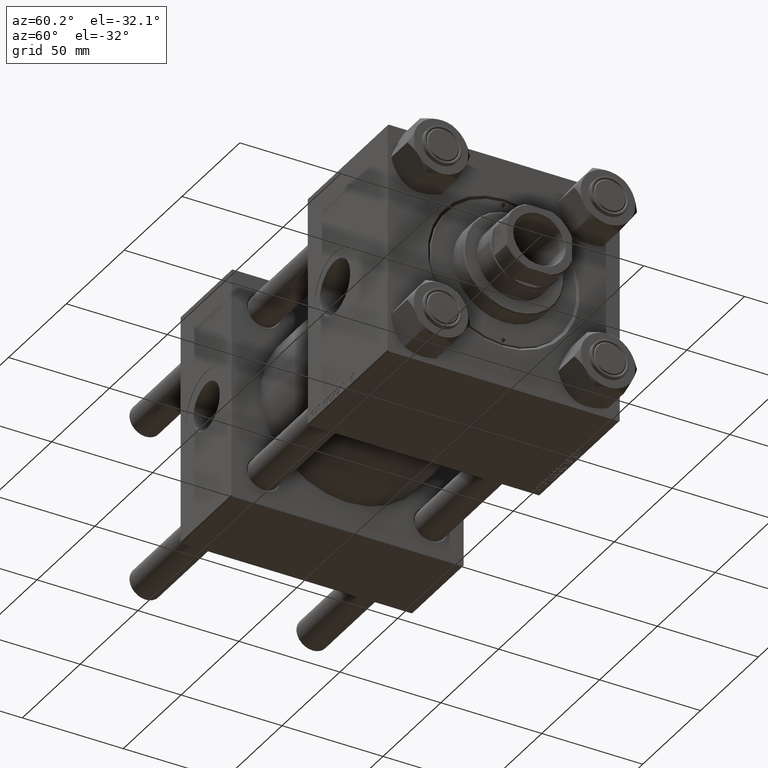
[diagram: clean part render]
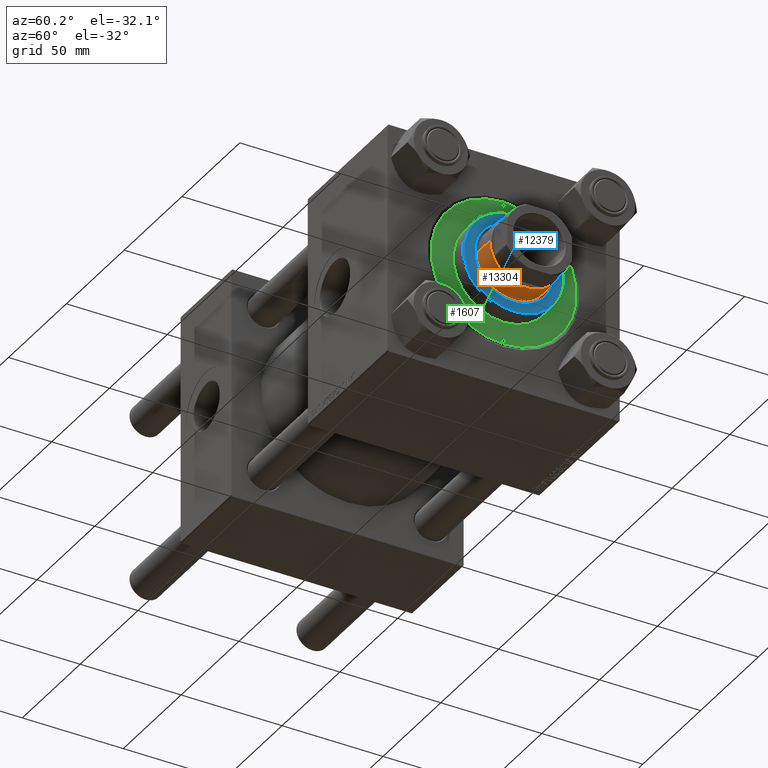
[diagram: same view with three faces highlighted in distinct colors, each labeled with its STEP entity id]
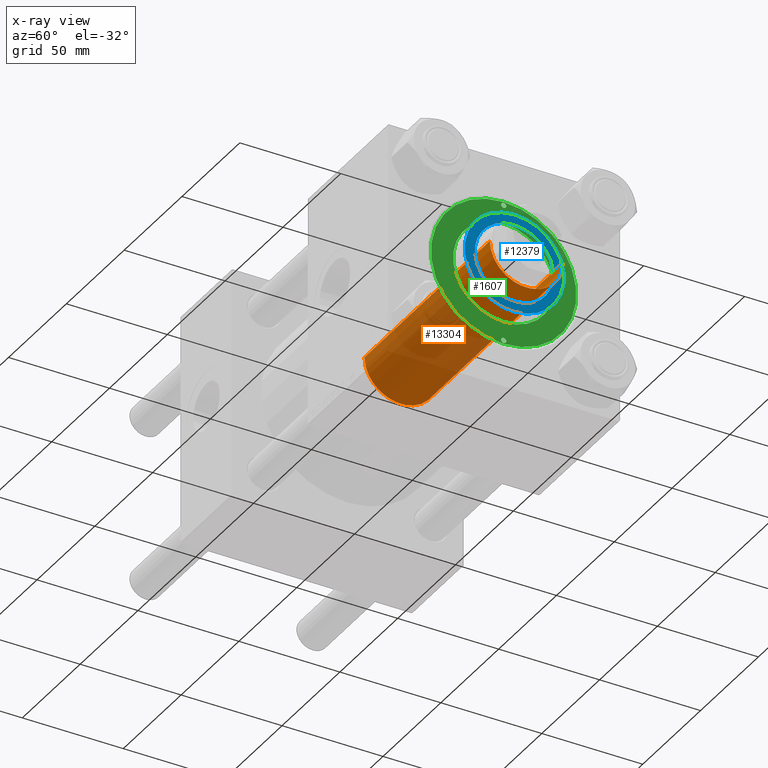
[diagram: x-ray of the same camera — body ghosted, the three highlighted faces saturated]
A machine part, auxiliary view with three faces highlighted in distinct colors.
The next image is the same camera in x-ray (body ghosted, the three faces saturated) — at least one of them is partly hidden behind the body in this view.
Their STEP definitions:

[orange] entity #13304 — the highlighted cylindrical surface (partial cylindrical patch) has radius 18 mm, axis along (-1, 0, 0).
#1158 = VERTEX_POINT ( 'NONE', #3900 ) ;
#2685 = VECTOR ( 'NONE', #48285, 1000.000000000000000 ) ;
#3900 = CARTESIAN_POINT ( 'NONE',  ( 18.00000000000000000, 2.204364238465235428E-15, 46.00000000000000000 ) ) ;
#3966 = LINE ( 'NONE', #47563, #36045 ) ;
#4296 = DIRECTION ( 'NONE',  ( 1.000000000000000000, 0.000000000000000000, 0.000000000000000000 ) ) ;
#4713 = EDGE_LOOP ( 'NONE', ( #28370, #14084, #37248, #30160 ) ) ;
#5161 = LINE ( 'NONE', #47763, #2685 ) ;
#6636 = CARTESIAN_POINT ( 'NONE',  ( 0.000000000000000000, 0.000000000000000000, 155.0000000000000000 ) ) ;
#7121 = EDGE_CURVE ( 'NONE', #16188, #13195, #3966, .T. ) ;
#8370 = CARTESIAN_POINT ( 'NONE',  ( 0.000000000000000000, 0.000000000000000000, 46.00000000000000000 ) ) ;
#9180 = AXIS2_PLACEMENT_3D ( 'NONE', #8370, #12710, #4296 ) ;
#9993 = CIRCLE ( 'NONE', #9180, 18.00000000000000000 ) ;
#10806 = CIRCLE ( 'NONE', #27847, 18.00000000000000000 ) ;
#12705 = CARTESIAN_POINT ( 'NONE',  ( 0.000000000000000000, 0.000000000000000000, 154.4999999999999716 ) ) ;
#12710 = DIRECTION ( 'NONE',  ( 0.000000000000000000, 0.000000000000000000, 1.000000000000000000 ) ) ;
#13195 = VERTEX_POINT ( 'NONE', #39364 ) ;
#13304 = ADVANCED_FACE ( 'NONE', ( #22207 ), #25775, .T. ) ;
#14084 = ORIENTED_EDGE ( 'NONE', *, *, #28766, .T. ) ;
#16188 = VERTEX_POINT ( 'NONE', #41189 ) ;
#17731 = CARTESIAN_POINT ( 'NONE',  ( 18.00000000000000000, 2.204364238465235428E-15, 154.4999999999999716 ) ) ;
#18895 = DIRECTION ( 'NONE',  ( -1.000000000000000000, 0.000000000000000000, 0.000000000000000000 ) ) ;
#22207 = FACE_OUTER_BOUND ( 'NONE', #4713, .T. ) ;
#25775 = CYLINDRICAL_SURFACE ( 'NONE', #36936, 18.00000000000000000 ) ;
#26499 = EDGE_CURVE ( 'NONE', #16188, #30373, #10806, .T. ) ;
#26771 = DIRECTION ( 'NONE',  ( -0.000000000000000000, -0.000000000000000000, -1.000000000000000000 ) ) ;
#27847 = AXIS2_PLACEMENT_3D ( 'NONE', #12705, #28245, #27991 ) ;
#27991 = DIRECTION ( 'NONE',  ( 1.000000000000000000, 0.000000000000000000, 0.000000000000000000 ) ) ;
#28069 = EDGE_CURVE ( 'NONE', #1158, #13195, #9993, .T. ) ;
#28245 = DIRECTION ( 'NONE',  ( 0.000000000000000000, 0.000000000000000000, -1.000000000000000000 ) ) ;
#28370 = ORIENTED_EDGE ( 'NONE', *, *, #26499, .T. ) ;
#28766 = EDGE_CURVE ( 'NONE', #30373, #1158, #5161, .T. ) ;
#30160 = ORIENTED_EDGE ( 'NONE', *, *, #7121, .F. ) ;
#30373 = VERTEX_POINT ( 'NONE', #17731 ) ;
#36045 = VECTOR ( 'NONE', #43744, 1000.000000000000000 ) ;
#36936 = AXIS2_PLACEMENT_3D ( 'NONE', #6636, #26771, #18895 ) ;
#37248 = ORIENTED_EDGE ( 'NONE', *, *, #28069, .T. ) ;
#39364 = CARTESIAN_POINT ( 'NONE',  ( -18.00000000000000000, 0.000000000000000000, 46.00000000000000000 ) ) ;
#41189 = CARTESIAN_POINT ( 'NONE',  ( -18.00000000000000000, 0.000000000000000000, 154.4999999999999716 ) ) ;
#43744 = DIRECTION ( 'NONE',  ( -0.000000000000000000, -0.000000000000000000, -1.000000000000000000 ) ) ;
#47563 = CARTESIAN_POINT ( 'NONE',  ( -18.00000000000000000, 0.000000000000000000, 155.0000000000000000 ) ) ;
#47763 = CARTESIAN_POINT ( 'NONE',  ( 18.00000000000000000, 2.204364238465235428E-15, 155.0000000000000000 ) ) ;
#48285 = DIRECTION ( 'NONE',  ( -0.000000000000000000, -0.000000000000000000, -1.000000000000000000 ) ) ;

[blue] entity #12379 — the highlighted planar face has unit normal (1, 0, -0).
#680 = EDGE_LOOP ( 'NONE', ( #9293, #44721 ) ) ;
#2354 = ORIENTED_EDGE ( 'NONE', *, *, #15497, .T. ) ;
#3415 = EDGE_CURVE ( 'NONE', #9089, #31925, #28589, .T. ) ;
#4167 = VERTEX_POINT ( 'NONE', #19148 ) ;
#4414 = CARTESIAN_POINT ( 'NONE',  ( 24.49999999999999645, 3.031000827889698861E-15, 37.69999999999999574 ) ) ;
#5251 = DIRECTION ( 'NONE',  ( 1.000000000000000000, 0.000000000000000000, 0.000000000000000000 ) ) ;
#7365 = AXIS2_PLACEMENT_3D ( 'NONE', #11047, #46217, #34732 ) ;
#9089 = VERTEX_POINT ( 'NONE', #27666 ) ;
#9293 = ORIENTED_EDGE ( 'NONE', *, *, #3415, .F. ) ;
#11047 = CARTESIAN_POINT ( 'NONE',  ( 0.000000000000000000, 0.000000000000000000, 37.69999999999999574 ) ) ;
#11089 = DIRECTION ( 'NONE',  ( 1.000000000000000000, 0.000000000000000000, -0.000000000000000000 ) ) ;
#12379 = ADVANCED_FACE ( 'NONE', ( #27131, #14921 ), #46259, .T. ) ;
#12767 = CARTESIAN_POINT ( 'NONE',  ( -19.50000000000000000, 2.388061258337338939E-15, 37.69999999999999574 ) ) ;
#14921 = FACE_OUTER_BOUND ( 'NONE', #22371, .T. ) ;
#15194 = CARTESIAN_POINT ( 'NONE',  ( 0.000000000000000000, 0.000000000000000000, 37.69999999999999574 ) ) ;
#15497 = EDGE_CURVE ( 'NONE', #50251, #4167, #20840, .T. ) ;
#16370 = AXIS2_PLACEMENT_3D ( 'NONE', #15194, #30215, #29965 ) ;
#18462 = AXIS2_PLACEMENT_3D ( 'NONE', #34226, #22273, #30152 ) ;
#19148 = CARTESIAN_POINT ( 'NONE',  ( -24.49999999999999645, 0.000000000000000000, 37.69999999999999574 ) ) ;
#19525 = EDGE_CURVE ( 'NONE', #4167, #50251, #44016, .T. ) ;
#20840 = CIRCLE ( 'NONE', #32199, 24.49999999999999645 ) ;
#22273 = DIRECTION ( 'NONE',  ( 0.000000000000000000, 0.000000000000000000, 1.000000000000000000 ) ) ;
#22371 = EDGE_LOOP ( 'NONE', ( #36749, #2354 ) ) ;
#27131 = FACE_BOUND ( 'NONE', #680, .T. ) ;
#27264 = AXIS2_PLACEMENT_3D ( 'NONE', #30445, #46019, #11089 ) ;
#27666 = CARTESIAN_POINT ( 'NONE',  ( 19.50000000000000000, 0.000000000000000000, 37.69999999999999574 ) ) ;
#27711 = CARTESIAN_POINT ( 'NONE',  ( 0.000000000000000000, 0.000000000000000000, 37.69999999999999574 ) ) ;
#28589 = CIRCLE ( 'NONE', #16370, 19.50000000000000000 ) ;
#29965 = DIRECTION ( 'NONE',  ( 1.000000000000000000, 0.000000000000000000, 0.000000000000000000 ) ) ;
#30152 = DIRECTION ( 'NONE',  ( 1.000000000000000000, 0.000000000000000000, 0.000000000000000000 ) ) ;
#30215 = DIRECTION ( 'NONE',  ( 0.000000000000000000, 0.000000000000000000, 1.000000000000000000 ) ) ;
#30445 = CARTESIAN_POINT ( 'NONE',  ( 0.000000000000000000, 0.000000000000000000, 37.69999999999999574 ) ) ;
#31925 = VERTEX_POINT ( 'NONE', #12767 ) ;
#32199 = AXIS2_PLACEMENT_3D ( 'NONE', #27711, #43276, #5251 ) ;
#34226 = CARTESIAN_POINT ( 'NONE',  ( 0.000000000000000000, 0.000000000000000000, 37.69999999999999574 ) ) ;
#34732 = DIRECTION ( 'NONE',  ( 1.000000000000000000, 0.000000000000000000, 0.000000000000000000 ) ) ;
#36749 = ORIENTED_EDGE ( 'NONE', *, *, #19525, .T. ) ;
#39912 = EDGE_CURVE ( 'NONE', #31925, #9089, #46131, .T. ) ;
#43276 = DIRECTION ( 'NONE',  ( 0.000000000000000000, 0.000000000000000000, 1.000000000000000000 ) ) ;
#44016 = CIRCLE ( 'NONE', #7365, 24.49999999999999645 ) ;
#44721 = ORIENTED_EDGE ( 'NONE', *, *, #39912, .F. ) ;
#46019 = DIRECTION ( 'NONE',  ( 0.000000000000000000, 0.000000000000000000, 1.000000000000000000 ) ) ;
#46131 = CIRCLE ( 'NONE', #18462, 19.50000000000000000 ) ;
#46217 = DIRECTION ( 'NONE',  ( 0.000000000000000000, 0.000000000000000000, 1.000000000000000000 ) ) ;
#46259 = PLANE ( 'NONE',  #27264 ) ;
#50251 = VERTEX_POINT ( 'NONE', #4414 ) ;

[green] entity #1607 — the highlighted planar face has unit normal (1, 0, -0).
#760 = CARTESIAN_POINT ( 'NONE',  ( 34.25000000000000000, 0.000000000000000000, 28.69999999999999929 ) ) ;
#976 = VERTEX_POINT ( 'NONE', #31979 ) ;
#1092 = CARTESIAN_POINT ( 'NONE',  ( 25.00000000000000000, 3.061616997868383043E-15, 28.69999999999999929 ) ) ;
#1607 = ADVANCED_FACE ( 'NONE', ( #47305, #12395, #19563, #15735 ), #15982, .T. ) ;
#1708 = CIRCLE ( 'NONE', #13941, 1.250000000000001110 ) ;
#1935 = VERTEX_POINT ( 'NONE', #42686 ) ;
#3297 = AXIS2_PLACEMENT_3D ( 'NONE', #35583, #3714, #27932 ) ;
#3714 = DIRECTION ( 'NONE',  ( 0.000000000000000000, 0.000000000000000000, 1.000000000000000000 ) ) ;
#3850 = CARTESIAN_POINT ( 'NONE',  ( 36.00000000000000000, 4.408728476930470856E-15, 28.69999999999999929 ) ) ;
#4761 = VERTEX_POINT ( 'NONE', #40391 ) ;
#5424 = EDGE_CURVE ( 'NONE', #10697, #976, #45768, .T. ) ;
#6144 = AXIS2_PLACEMENT_3D ( 'NONE', #760, #20696, #9465 ) ;
#7084 = CARTESIAN_POINT ( 'NONE',  ( -25.00000000000000000, 0.000000000000000000, 28.69999999999999929 ) ) ;
#7874 = CARTESIAN_POINT ( 'NONE',  ( -34.25000000000000000, 0.000000000000000000, 28.69999999999999929 ) ) ;
#9465 = DIRECTION ( 'NONE',  ( 1.000000000000000000, 0.000000000000000000, 0.000000000000000000 ) ) ;
#9665 = ORIENTED_EDGE ( 'NONE', *, *, #39196, .F. ) ;
#10669 = DIRECTION ( 'NONE',  ( 1.000000000000000000, 0.000000000000000000, 0.000000000000000000 ) ) ;
#10697 = VERTEX_POINT ( 'NONE', #3850 ) ;
#11260 = CARTESIAN_POINT ( 'NONE',  ( 34.25000000000000000, 0.000000000000000000, 28.69999999999999929 ) ) ;
#12395 = FACE_BOUND ( 'NONE', #43300, .T. ) ;
#12752 = EDGE_CURVE ( 'NONE', #35738, #13645, #22321, .T. ) ;
#13645 = VERTEX_POINT ( 'NONE', #7084 ) ;
#13941 = AXIS2_PLACEMENT_3D ( 'NONE', #26721, #49938, #46343 ) ;
#14715 = DIRECTION ( 'NONE',  ( 0.000000000000000000, 0.000000000000000000, 1.000000000000000000 ) ) ;
#15735 = FACE_OUTER_BOUND ( 'NONE', #46647, .T. ) ;
#15982 = PLANE ( 'NONE',  #3297 ) ;
#16897 = CIRCLE ( 'NONE', #28311, 1.250000000000001110 ) ;
#17121 = CARTESIAN_POINT ( 'NONE',  ( 0.000000000000000000, 0.000000000000000000, 28.69999999999999929 ) ) ;
#17171 = CARTESIAN_POINT ( 'NONE',  ( 35.50000000000000711, 0.000000000000000000, 28.69999999999999929 ) ) ;
#17660 = VERTEX_POINT ( 'NONE', #37484 ) ;
#17782 = ORIENTED_EDGE ( 'NONE', *, *, #46426, .T. ) ;
#18258 = AXIS2_PLACEMENT_3D ( 'NONE', #21696, #24761, #40306 ) ;
#19377 = ORIENTED_EDGE ( 'NONE', *, *, #20009, .F. ) ;
#19563 = FACE_BOUND ( 'NONE', #33142, .T. ) ;
#19689 = ORIENTED_EDGE ( 'NONE', *, *, #12752, .F. ) ;
#20009 = EDGE_CURVE ( 'NONE', #4761, #17660, #1708, .T. ) ;
#20696 = DIRECTION ( 'NONE',  ( 0.000000000000000000, 0.000000000000000000, 1.000000000000000000 ) ) ;
#21196 = CIRCLE ( 'NONE', #36640, 36.00000000000000000 ) ;
#21696 = CARTESIAN_POINT ( 'NONE',  ( 0.000000000000000000, 0.000000000000000000, 28.69999999999999929 ) ) ;
#21713 = EDGE_CURVE ( 'NONE', #13645, #35738, #27822, .T. ) ;
#22321 = CIRCLE ( 'NONE', #18258, 25.00000000000000000 ) ;
#24761 = DIRECTION ( 'NONE',  ( 0.000000000000000000, 0.000000000000000000, 1.000000000000000000 ) ) ;
#26186 = DIRECTION ( 'NONE',  ( 1.000000000000000000, 0.000000000000000000, 0.000000000000000000 ) ) ;
#26721 = CARTESIAN_POINT ( 'NONE',  ( -34.25000000000000000, 0.000000000000000000, 28.69999999999999929 ) ) ;
#26803 = DIRECTION ( 'NONE',  ( 1.000000000000000000, 0.000000000000000000, 0.000000000000000000 ) ) ;
#27822 = CIRCLE ( 'NONE', #47391, 25.00000000000000000 ) ;
#27932 = DIRECTION ( 'NONE',  ( 1.000000000000000000, 0.000000000000000000, -0.000000000000000000 ) ) ;
#28311 = AXIS2_PLACEMENT_3D ( 'NONE', #7874, #31809, #35156 ) ;
#31809 = DIRECTION ( 'NONE',  ( 0.000000000000000000, 0.000000000000000000, 1.000000000000000000 ) ) ;
#31979 = CARTESIAN_POINT ( 'NONE',  ( -36.00000000000000000, 0.000000000000000000, 28.69999999999999929 ) ) ;
#32642 = DIRECTION ( 'NONE',  ( 0.000000000000000000, 0.000000000000000000, 1.000000000000000000 ) ) ;
#32742 = EDGE_LOOP ( 'NONE', ( #19377, #48479 ) ) ;
#33142 = EDGE_LOOP ( 'NONE', ( #42044, #19689 ) ) ;
#33676 = ORIENTED_EDGE ( 'NONE', *, *, #5424, .T. ) ;
#35156 = DIRECTION ( 'NONE',  ( 1.000000000000000000, 0.000000000000000000, 0.000000000000000000 ) ) ;
#35583 = CARTESIAN_POINT ( 'NONE',  ( 0.000000000000000000, 0.000000000000000000, 28.69999999999999929 ) ) ;
#35738 = VERTEX_POINT ( 'NONE', #1092 ) ;
#36640 = AXIS2_PLACEMENT_3D ( 'NONE', #49678, #38183, #10669 ) ;
#37484 = CARTESIAN_POINT ( 'NONE',  ( -35.50000000000000711, 1.530808498934184175E-16, 28.69999999999999929 ) ) ;
#38183 = DIRECTION ( 'NONE',  ( 0.000000000000000000, 0.000000000000000000, 1.000000000000000000 ) ) ;
#39196 = EDGE_CURVE ( 'NONE', #1935, #50376, #42031, .T. ) ;
#40306 = DIRECTION ( 'NONE',  ( 1.000000000000000000, 0.000000000000000000, 0.000000000000000000 ) ) ;
#40391 = CARTESIAN_POINT ( 'NONE',  ( -33.00000000000000000, 0.000000000000000000, 28.69999999999999929 ) ) ;
#40569 = DIRECTION ( 'NONE',  ( 1.000000000000000000, 0.000000000000000000, 0.000000000000000000 ) ) ;
#42031 = CIRCLE ( 'NONE', #6144, 1.250000000000001110 ) ;
#42044 = ORIENTED_EDGE ( 'NONE', *, *, #21713, .F. ) ;
#42537 = ORIENTED_EDGE ( 'NONE', *, *, #49843, .F. ) ;
#42686 = CARTESIAN_POINT ( 'NONE',  ( 33.00000000000000000, 1.530808498934184175E-16, 28.69999999999999929 ) ) ;
#43150 = EDGE_CURVE ( 'NONE', #17660, #4761, #16897, .T. ) ;
#43156 = AXIS2_PLACEMENT_3D ( 'NONE', #11260, #49522, #26803 ) ;
#43300 = EDGE_LOOP ( 'NONE', ( #42537, #9665 ) ) ;
#45768 = CIRCLE ( 'NONE', #46597, 36.00000000000000000 ) ;
#46343 = DIRECTION ( 'NONE',  ( 1.000000000000000000, 0.000000000000000000, 0.000000000000000000 ) ) ;
#46426 = EDGE_CURVE ( 'NONE', #976, #10697, #21196, .T. ) ;
#46597 = AXIS2_PLACEMENT_3D ( 'NONE', #49396, #14715, #26186 ) ;
#46647 = EDGE_LOOP ( 'NONE', ( #17782, #33676 ) ) ;
#47305 = FACE_BOUND ( 'NONE', #32742, .T. ) ;
#47391 = AXIS2_PLACEMENT_3D ( 'NONE', #17121, #32642, #40569 ) ;
#48035 = CIRCLE ( 'NONE', #43156, 1.250000000000001110 ) ;
#48479 = ORIENTED_EDGE ( 'NONE', *, *, #43150, .F. ) ;
#49396 = CARTESIAN_POINT ( 'NONE',  ( 0.000000000000000000, 0.000000000000000000, 28.69999999999999929 ) ) ;
#49522 = DIRECTION ( 'NONE',  ( 0.000000000000000000, 0.000000000000000000, 1.000000000000000000 ) ) ;
#49678 = CARTESIAN_POINT ( 'NONE',  ( 0.000000000000000000, 0.000000000000000000, 28.69999999999999929 ) ) ;
#49843 = EDGE_CURVE ( 'NONE', #50376, #1935, #48035, .T. ) ;
#49938 = DIRECTION ( 'NONE',  ( 0.000000000000000000, 0.000000000000000000, 1.000000000000000000 ) ) ;
#50376 = VERTEX_POINT ( 'NONE', #17171 ) ;